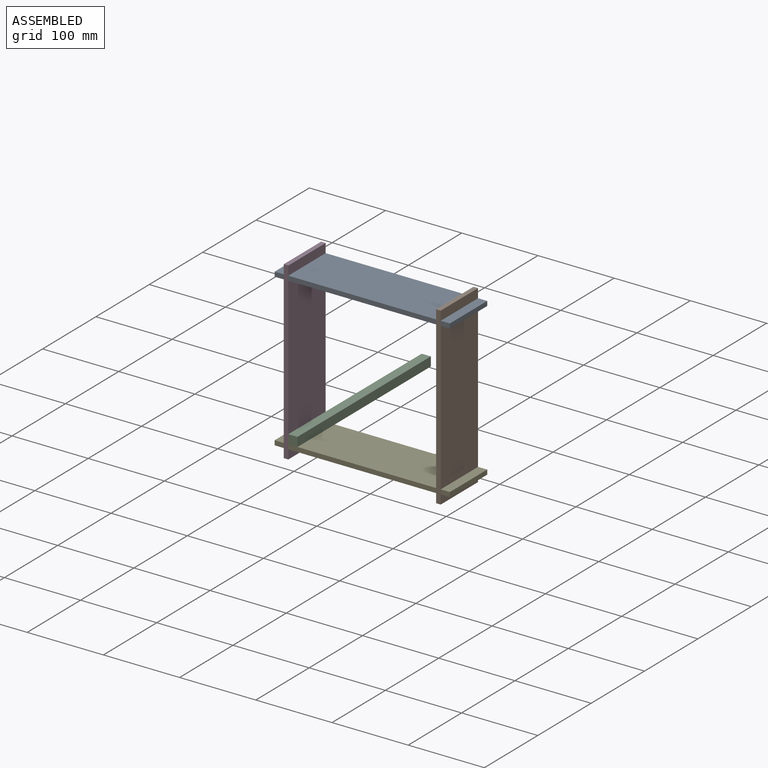
[diagram: assembled view]
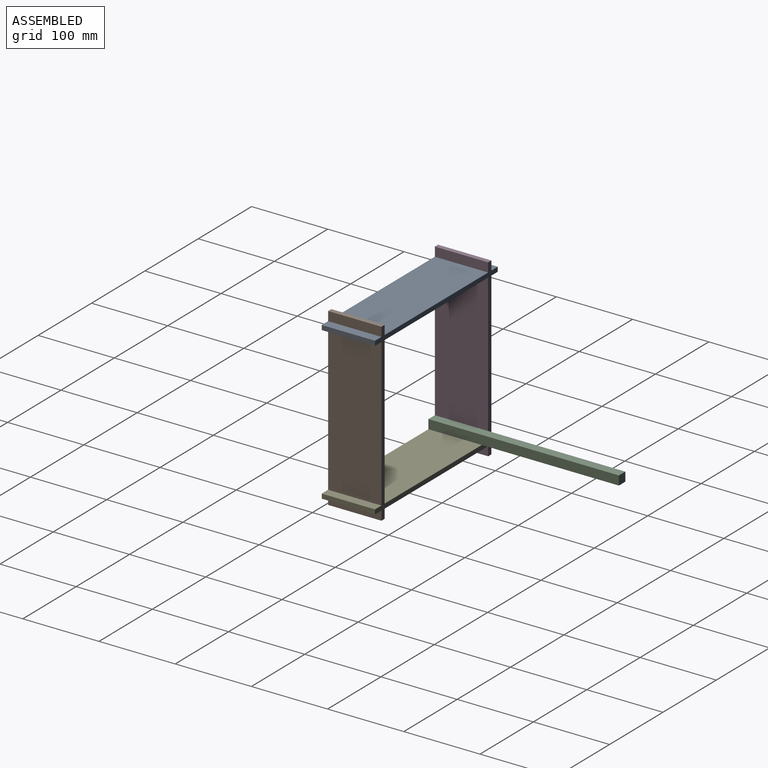
[diagram: assembled view, second angle]
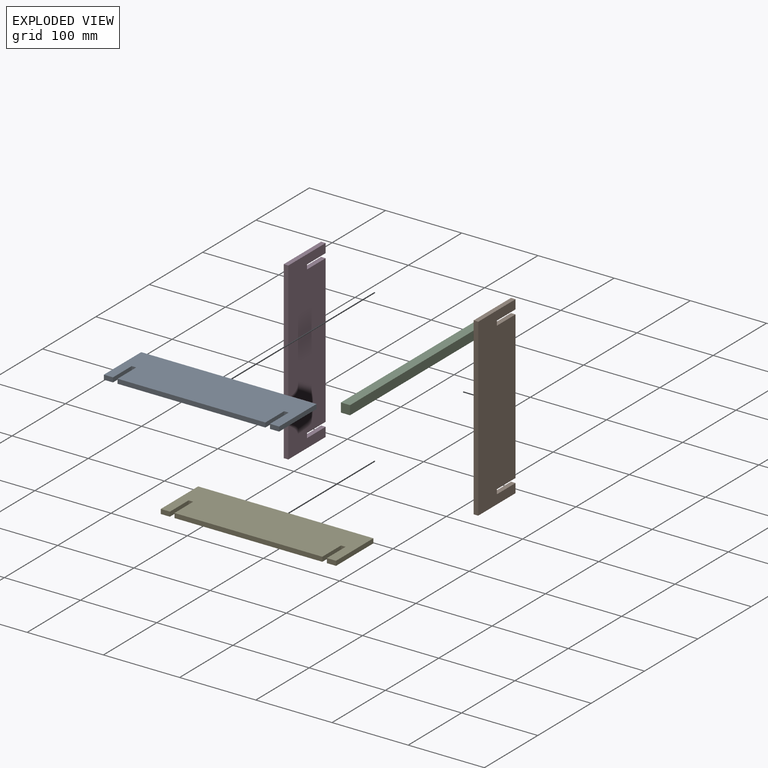
[diagram: exploded view]
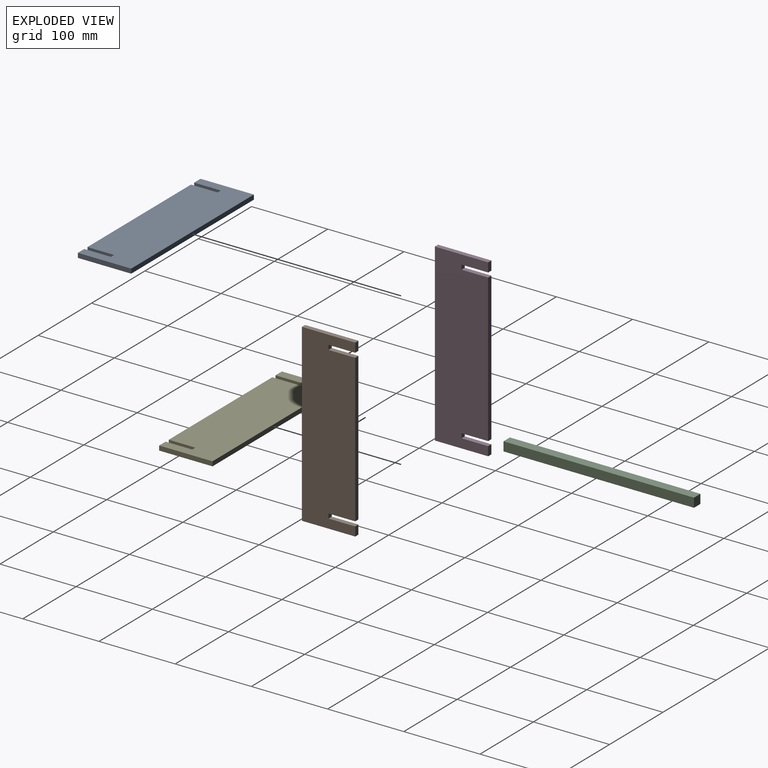
[diagram: exploded view, second angle]
ASSEMBLY  parts=5 mates=4
PART A: 14 faces, bbox 230x70x6 mm
  f0: plane 194x6mm, normal (0,-1,0), area 1164mm2, adj f2,f3,f8,f12
  f1: plane 12x6mm, normal (0,-1,0), area 72mm2, adj f2,f3,f6,f9
  f2: plane 230x70mm, normal (0,0,1), area 15680mm2, adj f0,f1,f4,f5,f6,f7,f8,f9
  f3: plane 230x70mm, normal (0,0,-1), area 15680mm2, adj f0,f1,f4,f5,f6,f7,f8,f9
  f4: plane 70x6mm, normal (-1,0,0), area 420mm2, adj f2,f3,f5,f7
  f5: plane 12x6mm, normal (0,-1,0), area 72mm2, adj f2,f3,f4,f11
  f6: plane 70x6mm, normal (1,0,0), area 420mm2, adj f1,f2,f3,f7
  f7: plane 230x6mm, normal (0,1,0), area 1380mm2, adj f2,f3,f4,f6
  f8: plane 35x6mm, normal (1,0,0), area 210mm2, adj f0,f2,f3,f10
  f9: plane 35x6mm, normal (-1,0,0), area 210mm2, adj f1,f2,f3,f10
  f10: plane 6x6mm, normal (0,-1,0), area 36mm2, adj f2,f3,f8,f9
  f11: plane 35x6mm, normal (1,0,0), area 210mm2, adj f2,f3,f5,f13
  f12: plane 35x6mm, normal (-1,0,0), area 210mm2, adj f0,f2,f3,f13
  f13: plane 6x6mm, normal (0,-1,0), area 36mm2, adj f2,f3,f11,f12
PART B: same geometry as A
PART C: 6 faces, bbox 12x12x250 mm
  f0: plane 250x12mm, normal (-1,0,0), area 3000mm2, adj f1,f3,f4,f5
  f1: plane 12x12mm, normal (0,0,-1), area 144mm2, adj f0,f2,f4,f5
  f2: plane 250x12mm, normal (1,0,0), area 3000mm2, adj f1,f3,f4,f5
  f3: plane 12x12mm, normal (0,0,1), area 144mm2, adj f0,f2,f4,f5
  f4: plane 250x12mm, normal (0,-1,0), area 3000mm2, adj f0,f1,f2,f3
  f5: plane 250x12mm, normal (0,1,0), area 3000mm2, adj f0,f1,f2,f3
PART D: same geometry as A
PART E: same geometry as A
PLACE A t=(-132.68,10.35,-34.84)mm
PLACE B rot(axis=(-0.71,0,0.71),180deg) t=(85.32,80.35,-16.84)mm
PLACE C rot(axis=(1,0,0),90deg) t=(-114.68,260.35,-216.84)mm
PLACE D rot(axis=(-0.71,0,0.71),180deg) t=(-114.68,80.35,-16.84)mm
PLACE E t=(-132.68,10.35,-234.84)mm
MATE parallel D.f10 <-> E.f13  axis (0,1,0) through (-117.68,45.35,-231.84)mm
MATE parallel C.f3 <-> E.f0  axis (0,-1,0) through (-114.68,10.35,-228.84)mm
MATE parallel A.f13 <-> D.f13  axis (0,-1,0) through (-117.68,45.35,-31.84)mm
MATE parallel A.f13 <-> D.f13  axis (0,-1,0) through (-117.68,45.35,-31.84)mm
